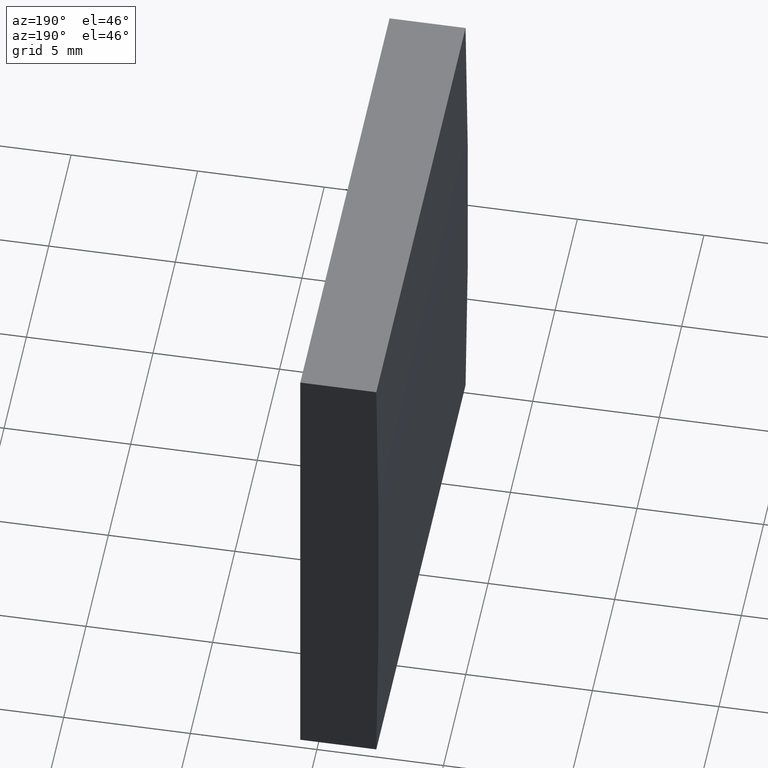
[diagram: clean part render]
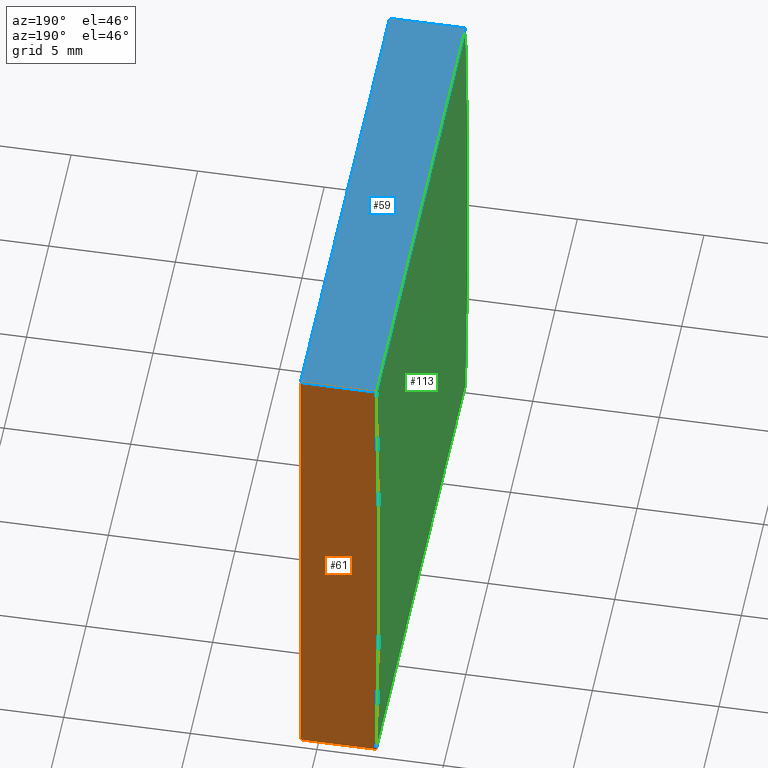
[diagram: same view with three faces highlighted in distinct colors, each labeled with its STEP entity id]
A machine part, auxiliary view with three faces highlighted in distinct colors.
Their STEP definitions:

[orange] entity #61 — the highlighted planar face has unit normal (0, 1, 0).
#1 = FACE_OUTER_BOUND ( 'NONE', #31, .T. ) ;
#6 = EDGE_CURVE ( 'NONE', #66, #189, #25, .T. ) ;
#7 = DIRECTION ( 'NONE',  ( 0.0000000000000000000, 0.0000000000000000000, 1.000000000000000000 ) ) ;
#11 = EDGE_CURVE ( 'NONE', #127, #183, #116, .T. ) ;
#17 = CARTESIAN_POINT ( 'NONE',  ( -512.3480373813197300, 20.00000000000000000, -10.00000000000000000 ) ) ;
#24 = CARTESIAN_POINT ( 'NONE',  ( -509.3447956651486900, 20.00000000000000000, 10.00000000000000000 ) ) ;
#25 = LINE ( 'NONE', #108, #124 ) ;
#31 = EDGE_LOOP ( 'NONE', ( #121, #93, #38, #175 ) ) ;
#37 = VECTOR ( 'NONE', #196, 1000.000000000000000 ) ;
#38 = ORIENTED_EDGE ( 'NONE', *, *, #162, .T. ) ;
#40 = PLANE ( 'NONE',  #71 ) ;
#51 = CIRCLE ( 'NONE', #173, 516.7999999999998400 ) ;
#61 = ADVANCED_FACE ( 'NONE', ( #1 ), #40, .T. ) ;
#66 = VERTEX_POINT ( 'NONE', #110 ) ;
#71 = AXIS2_PLACEMENT_3D ( 'NONE', #158, #182, #165 ) ;
#93 = ORIENTED_EDGE ( 'NONE', *, *, #6, .T. ) ;
#99 = DIRECTION ( 'NONE',  ( 0.0000000000000000000, 1.000000000000000000, 0.0000000000000000000 ) ) ;
#105 = DIRECTION ( 'NONE',  ( -1.000000000000000000, -0.0000000000000000000, 1.155234003734118200E-015 ) ) ;
#108 = CARTESIAN_POINT ( 'NONE',  ( -512.3480373813197300, 20.00000000000000000, 10.00000000000000000 ) ) ;
#110 = CARTESIAN_POINT ( 'NONE',  ( -512.3480373813197300, 20.00000000000000000, 10.00000000000000000 ) ) ;
#112 = VECTOR ( 'NONE', #105, 1000.000000000000000 ) ;
#116 = LINE ( 'NONE', #149, #112 ) ;
#121 = ORIENTED_EDGE ( 'NONE', *, *, #156, .T. ) ;
#124 = VECTOR ( 'NONE', #172, 1000.000000000000000 ) ;
#127 = VERTEX_POINT ( 'NONE', #181 ) ;
#139 = LINE ( 'NONE', #166, #37 ) ;
#149 = CARTESIAN_POINT ( 'NONE',  ( -512.3480373813197300, 20.00000000000000000, -10.00000000000000000 ) ) ;
#151 = CARTESIAN_POINT ( 'NONE',  ( 4.355204334851265500, 20.00000000000000000, 4.286263797015675000E-017 ) ) ;
#156 = EDGE_CURVE ( 'NONE', #183, #66, #51, .T. ) ;
#158 = CARTESIAN_POINT ( 'NONE',  ( 4.355204334851265500, 20.00000000000000000, 4.286263797015675000E-017 ) ) ;
#162 = EDGE_CURVE ( 'NONE', #189, #127, #139, .T. ) ;
#165 = DIRECTION ( 'NONE',  ( 0.0000000000000000000, -0.0000000000000000000, 1.000000000000000000 ) ) ;
#166 = CARTESIAN_POINT ( 'NONE',  ( -509.3447956651486900, 20.00000000000000000, -10.00000000000000400 ) ) ;
#172 = DIRECTION ( 'NONE',  ( 1.000000000000000000, 0.0000000000000000000, 0.0000000000000000000 ) ) ;
#173 = AXIS2_PLACEMENT_3D ( 'NONE', #151, #99, #7 ) ;
#175 = ORIENTED_EDGE ( 'NONE', *, *, #11, .T. ) ;
#181 = CARTESIAN_POINT ( 'NONE',  ( -509.3447956651486900, 20.00000000000000000, -10.00000000000000400 ) ) ;
#182 = DIRECTION ( 'NONE',  ( 0.0000000000000000000, 1.000000000000000000, 0.0000000000000000000 ) ) ;
#183 = VERTEX_POINT ( 'NONE', #17 ) ;
#189 = VERTEX_POINT ( 'NONE', #24 ) ;
#196 = DIRECTION ( 'NONE',  ( -0.0000000000000000000, -0.0000000000000000000, -1.000000000000000000 ) ) ;

[blue] entity #59 — the highlighted planar face has unit normal (0, 0, -1).
#6 = EDGE_CURVE ( 'NONE', #66, #189, #25, .T. ) ;
#24 = CARTESIAN_POINT ( 'NONE',  ( -509.3447956651486900, 20.00000000000000000, 10.00000000000000000 ) ) ;
#25 = LINE ( 'NONE', #108, #124 ) ;
#33 = EDGE_CURVE ( 'NONE', #66, #194, #122, .T. ) ;
#45 = CARTESIAN_POINT ( 'NONE',  ( -512.3480373813197300, 0.0000000000000000000, 10.00000000000000000 ) ) ;
#46 = CARTESIAN_POINT ( 'NONE',  ( -509.3447956651486900, 20.00000000000000000, 10.00000000000000000 ) ) ;
#49 = CARTESIAN_POINT ( 'NONE',  ( -512.3480373813197300, 0.0000000000000000000, 10.00000000000000000 ) ) ;
#54 = VECTOR ( 'NONE', #88, 1000.000000000000000 ) ;
#57 = ORIENTED_EDGE ( 'NONE', *, *, #63, .T. ) ;
#59 = ADVANCED_FACE ( 'NONE', ( #155 ), #114, .F. ) ;
#60 = CARTESIAN_POINT ( 'NONE',  ( -512.3480373813197300, 20.00000000000000000, 10.00000000000000000 ) ) ;
#63 = EDGE_CURVE ( 'NONE', #194, #144, #164, .T. ) ;
#65 = AXIS2_PLACEMENT_3D ( 'NONE', #60, #136, #86 ) ;
#66 = VERTEX_POINT ( 'NONE', #110 ) ;
#69 = ORIENTED_EDGE ( 'NONE', *, *, #33, .T. ) ;
#75 = LINE ( 'NONE', #46, #54 ) ;
#86 = DIRECTION ( 'NONE',  ( -1.000000000000000000, 0.0000000000000000000, -0.0000000000000000000 ) ) ;
#88 = DIRECTION ( 'NONE',  ( -0.0000000000000000000, -1.000000000000000000, -0.0000000000000000000 ) ) ;
#89 = CARTESIAN_POINT ( 'NONE',  ( -509.3447956651486900, 0.0000000000000000000, 10.00000000000000000 ) ) ;
#102 = ORIENTED_EDGE ( 'NONE', *, *, #118, .F. ) ;
#108 = CARTESIAN_POINT ( 'NONE',  ( -512.3480373813197300, 20.00000000000000000, 10.00000000000000000 ) ) ;
#110 = CARTESIAN_POINT ( 'NONE',  ( -512.3480373813197300, 20.00000000000000000, 10.00000000000000000 ) ) ;
#111 = CARTESIAN_POINT ( 'NONE',  ( -512.3480373813197300, 20.00000000000000000, 10.00000000000000000 ) ) ;
#114 = PLANE ( 'NONE',  #65 ) ;
#118 = EDGE_CURVE ( 'NONE', #189, #144, #75, .T. ) ;
#122 = LINE ( 'NONE', #111, #132 ) ;
#124 = VECTOR ( 'NONE', #172, 1000.000000000000000 ) ;
#131 = DIRECTION ( 'NONE',  ( -0.0000000000000000000, -1.000000000000000000, -0.0000000000000000000 ) ) ;
#132 = VECTOR ( 'NONE', #131, 1000.000000000000000 ) ;
#136 = DIRECTION ( 'NONE',  ( 0.0000000000000000000, 0.0000000000000000000, -1.000000000000000000 ) ) ;
#144 = VERTEX_POINT ( 'NONE', #89 ) ;
#154 = EDGE_LOOP ( 'NONE', ( #57, #102, #163, #69 ) ) ;
#155 = FACE_OUTER_BOUND ( 'NONE', #154, .T. ) ;
#163 = ORIENTED_EDGE ( 'NONE', *, *, #6, .F. ) ;
#164 = LINE ( 'NONE', #45, #188 ) ;
#172 = DIRECTION ( 'NONE',  ( 1.000000000000000000, 0.0000000000000000000, 0.0000000000000000000 ) ) ;
#186 = DIRECTION ( 'NONE',  ( 1.000000000000000000, 0.0000000000000000000, 0.0000000000000000000 ) ) ;
#188 = VECTOR ( 'NONE', #186, 1000.000000000000000 ) ;
#189 = VERTEX_POINT ( 'NONE', #24 ) ;
#194 = VERTEX_POINT ( 'NONE', #49 ) ;

[green] entity #113 — the highlighted cylindrical surface (partial cylindrical patch) has radius 516.8 mm, axis along (-0, -1, -0).
#2 = EDGE_CURVE ( 'NONE', #50, #194, #87, .T. ) ;
#7 = DIRECTION ( 'NONE',  ( 0.0000000000000000000, 0.0000000000000000000, 1.000000000000000000 ) ) ;
#9 = DIRECTION ( 'NONE',  ( -0.0000000000000000000, -1.000000000000000000, -0.0000000000000000000 ) ) ;
#17 = CARTESIAN_POINT ( 'NONE',  ( -512.3480373813197300, 20.00000000000000000, -10.00000000000000000 ) ) ;
#23 = CYLINDRICAL_SURFACE ( 'NONE', #78, 516.7999999999998400 ) ;
#28 = DIRECTION ( 'NONE',  ( 0.0000000000000000000, 1.000000000000000000, 0.0000000000000000000 ) ) ;
#33 = EDGE_CURVE ( 'NONE', #66, #194, #122, .T. ) ;
#41 = CARTESIAN_POINT ( 'NONE',  ( 4.355204334851265500, 20.00000000000000000, 4.286263797015675000E-017 ) ) ;
#49 = CARTESIAN_POINT ( 'NONE',  ( -512.3480373813197300, 0.0000000000000000000, 10.00000000000000000 ) ) ;
#50 = VERTEX_POINT ( 'NONE', #64 ) ;
#51 = CIRCLE ( 'NONE', #173, 516.7999999999998400 ) ;
#52 = ORIENTED_EDGE ( 'NONE', *, *, #2, .T. ) ;
#64 = CARTESIAN_POINT ( 'NONE',  ( -512.3480373813197300, 0.0000000000000000000, -10.00000000000000000 ) ) ;
#66 = VERTEX_POINT ( 'NONE', #110 ) ;
#76 = ORIENTED_EDGE ( 'NONE', *, *, #107, .T. ) ;
#78 = AXIS2_PLACEMENT_3D ( 'NONE', #41, #9, #197 ) ;
#83 = DIRECTION ( 'NONE',  ( 0.0000000000000000000, 0.0000000000000000000, 1.000000000000000000 ) ) ;
#87 = CIRCLE ( 'NONE', #170, 516.7999999999998400 ) ;
#91 = DIRECTION ( 'NONE',  ( -0.0000000000000000000, -1.000000000000000000, -0.0000000000000000000 ) ) ;
#99 = DIRECTION ( 'NONE',  ( 0.0000000000000000000, 1.000000000000000000, 0.0000000000000000000 ) ) ;
#103 = CARTESIAN_POINT ( 'NONE',  ( 4.355204334851265500, 0.0000000000000000000, 4.286263797015675000E-017 ) ) ;
#107 = EDGE_CURVE ( 'NONE', #183, #50, #184, .T. ) ;
#110 = CARTESIAN_POINT ( 'NONE',  ( -512.3480373813197300, 20.00000000000000000, 10.00000000000000000 ) ) ;
#111 = CARTESIAN_POINT ( 'NONE',  ( -512.3480373813197300, 20.00000000000000000, 10.00000000000000000 ) ) ;
#113 = ADVANCED_FACE ( 'NONE', ( #203 ), #23, .T. ) ;
#115 = CARTESIAN_POINT ( 'NONE',  ( -512.3480373813197300, 20.00000000000000000, -10.00000000000000000 ) ) ;
#122 = LINE ( 'NONE', #111, #132 ) ;
#131 = DIRECTION ( 'NONE',  ( -0.0000000000000000000, -1.000000000000000000, -0.0000000000000000000 ) ) ;
#132 = VECTOR ( 'NONE', #131, 1000.000000000000000 ) ;
#151 = CARTESIAN_POINT ( 'NONE',  ( 4.355204334851265500, 20.00000000000000000, 4.286263797015675000E-017 ) ) ;
#156 = EDGE_CURVE ( 'NONE', #183, #66, #51, .T. ) ;
#168 = ORIENTED_EDGE ( 'NONE', *, *, #33, .F. ) ;
#170 = AXIS2_PLACEMENT_3D ( 'NONE', #103, #28, #83 ) ;
#173 = AXIS2_PLACEMENT_3D ( 'NONE', #151, #99, #7 ) ;
#183 = VERTEX_POINT ( 'NONE', #17 ) ;
#184 = LINE ( 'NONE', #115, #191 ) ;
#191 = VECTOR ( 'NONE', #91, 1000.000000000000000 ) ;
#193 = EDGE_LOOP ( 'NONE', ( #52, #168, #200, #76 ) ) ;
#194 = VERTEX_POINT ( 'NONE', #49 ) ;
#197 = DIRECTION ( 'NONE',  ( 0.0000000000000000000, 0.0000000000000000000, -1.000000000000000000 ) ) ;
#200 = ORIENTED_EDGE ( 'NONE', *, *, #156, .F. ) ;
#203 = FACE_OUTER_BOUND ( 'NONE', #193, .T. ) ;